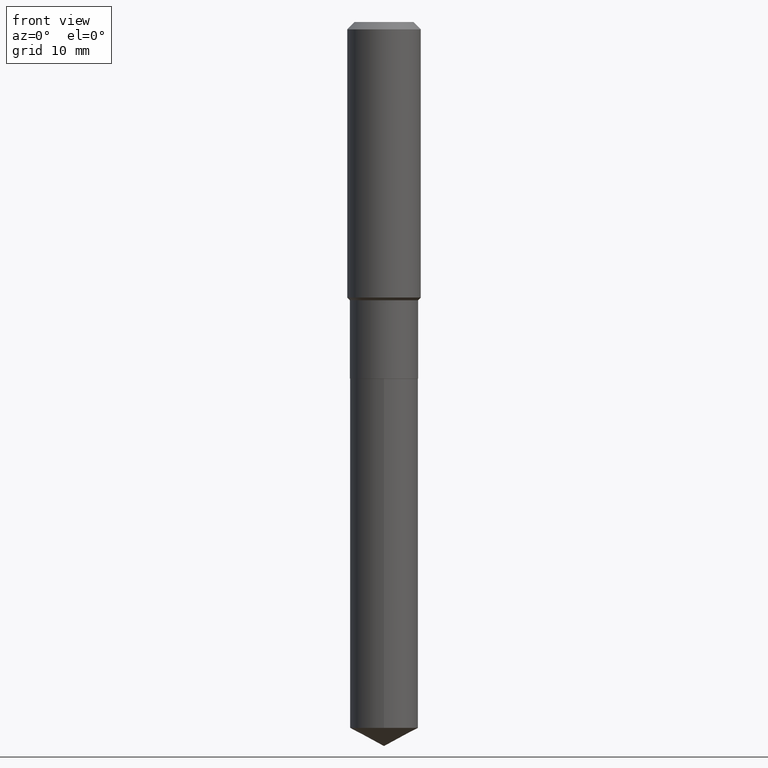
[diagram: clean part render]
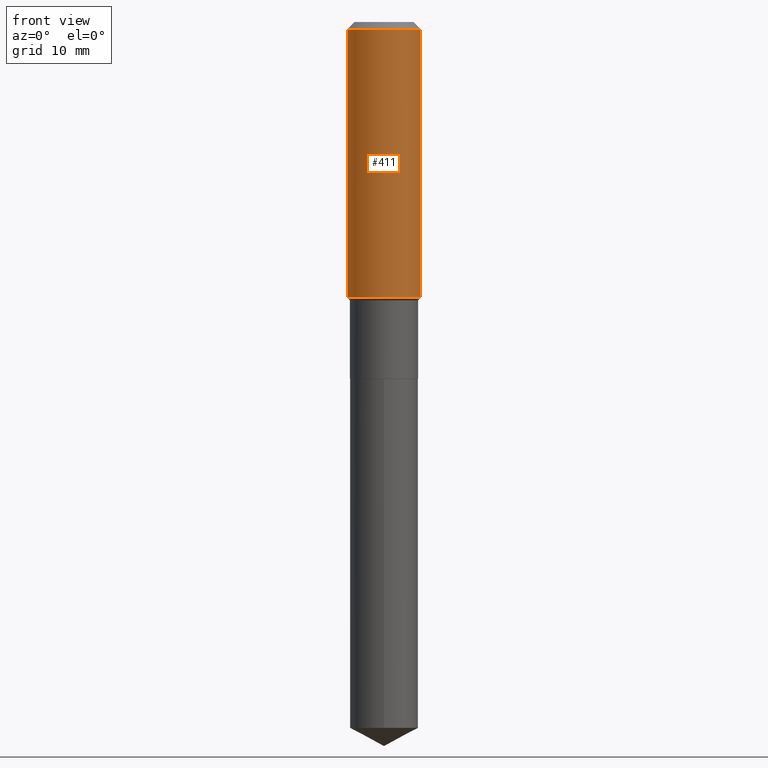
[diagram: same view with one face highlighted and labeled with its STEP entity id]
A machine part, front view. The second image highlights one B-rep face of the part: STEP entity #411.
In plain terms, the highlighted cylindrical surface (partial cylindrical patch) has radius 5.9995 mm, axis along (-0, 0, 1).
Its self-contained STEP definition (entity closure, byte-faithful):
#11 = ORIENTED_EDGE ( 'NONE', *, *, #159, .F. ) ;
#15 = VECTOR ( 'NONE', #461, 39.37007874015748143 ) ;
#39 = DIRECTION ( 'NONE',  ( 1.000000000000000000, -6.982962677686266711E-15, 4.876176775795935793E-29 ) ) ;
#43 = FACE_OUTER_BOUND ( 'NONE', #352, .T. ) ;
#52 = DIRECTION ( 'NONE',  ( 1.000000000000000000, -6.982962677686266711E-15, 0.000000000000000000 ) ) ;
#62 = AXIS2_PLACEMENT_3D ( 'NONE', #236, #384, #52 ) ;
#94 = ORIENTED_EDGE ( 'NONE', *, *, #289, .T. ) ;
#103 = VECTOR ( 'NONE', #380, 39.37007874015748143 ) ;
#119 = DIRECTION ( 'NONE',  ( -2.445468806185136597E-29, 3.491481338843145583E-15, 1.000000000000000000 ) ) ;
#141 = VERTEX_POINT ( 'NONE', #230 ) ;
#159 = EDGE_CURVE ( 'NONE', #224, #141, #373, .T. ) ;
#162 = CARTESIAN_POINT ( 'NONE',  ( -0.2362000000000001043, 1.678301941865357380E-15, -1.161852468318209317E-29 ) ) ;
#171 = CIRCLE ( 'NONE', #250, 0.2361999999999999933 ) ;
#200 = CARTESIAN_POINT ( 'NONE',  ( 0.2362000000000001043, -1.649375784469496920E-15, 1.151752954443000508E-29 ) ) ;
#222 = CYLINDRICAL_SURFACE ( 'NONE', #308, 0.2362000000000001043 ) ;
#224 = VERTEX_POINT ( 'NONE', #452 ) ;
#230 = CARTESIAN_POINT ( 'NONE',  ( -0.2361999999999999933, -1.490549063861987191E-15, -0.04724000000000027483 ) ) ;
#236 = CARTESIAN_POINT ( 'NONE',  ( 4.323466575895011537E-29, -6.172764433007738621E-15, -1.767949999999999910 ) ) ;
#239 = VERTEX_POINT ( 'NONE', #484 ) ;
#250 = AXIS2_PLACEMENT_3D ( 'NONE', #408, #119, #404 ) ;
#289 = EDGE_CURVE ( 'NONE', #387, #239, #453, .T. ) ;
#308 = AXIS2_PLACEMENT_3D ( 'NONE', #372, #376, #39 ) ;
#316 = CARTESIAN_POINT ( 'NONE',  ( 0.2362000000000002153, -7.822140217477236724E-15, -1.767949999999999910 ) ) ;
#324 = EDGE_CURVE ( 'NONE', #224, #387, #325, .T. ) ;
#325 = CIRCLE ( 'NONE', #62, 0.2362000000000002153 ) ;
#348 = ORIENTED_EDGE ( 'NONE', *, *, #324, .T. ) ;
#352 = EDGE_LOOP ( 'NONE', ( #11, #348, #94, #425 ) ) ;
#372 = CARTESIAN_POINT ( 'NONE',  ( 0.000000000000000000, 0.000000000000000000, 0.000000000000000000 ) ) ;
#373 = LINE ( 'NONE', #162, #103 ) ;
#376 = DIRECTION ( 'NONE',  ( -2.445468806185136597E-29, 3.491481338843145583E-15, 1.000000000000000000 ) ) ;
#380 = DIRECTION ( 'NONE',  ( -2.445468806185136877E-29, 3.491481338843145188E-15, 1.000000000000000000 ) ) ;
#384 = DIRECTION ( 'NONE',  ( -2.445468806185136597E-29, 3.491481338843145583E-15, 1.000000000000000000 ) ) ;
#387 = VERTEX_POINT ( 'NONE', #316 ) ;
#395 = EDGE_CURVE ( 'NONE', #141, #239, #171, .T. ) ;
#404 = DIRECTION ( 'NONE',  ( 1.000000000000000000, -6.982962677686266711E-15, 0.000000000000000000 ) ) ;
#408 = CARTESIAN_POINT ( 'NONE',  ( 1.155239464041865331E-30, -1.649375784469511612E-16, -0.04724000000000027483 ) ) ;
#411 = ADVANCED_FACE ( 'NONE', ( #43 ), #222, .T. ) ;
#425 = ORIENTED_EDGE ( 'NONE', *, *, #395, .F. ) ;
#452 = CARTESIAN_POINT ( 'NONE',  ( -0.2362000000000002153, -4.494462491142380649E-15, -1.767949999999999910 ) ) ;
#453 = LINE ( 'NONE', #200, #15 ) ;
#461 = DIRECTION ( 'NONE',  ( -2.445468806185136877E-29, 3.491481338843145188E-15, 1.000000000000000000 ) ) ;
#484 = CARTESIAN_POINT ( 'NONE',  ( 0.2361999999999999933, -1.814313362916447440E-15, -0.04724000000000027483 ) ) ;